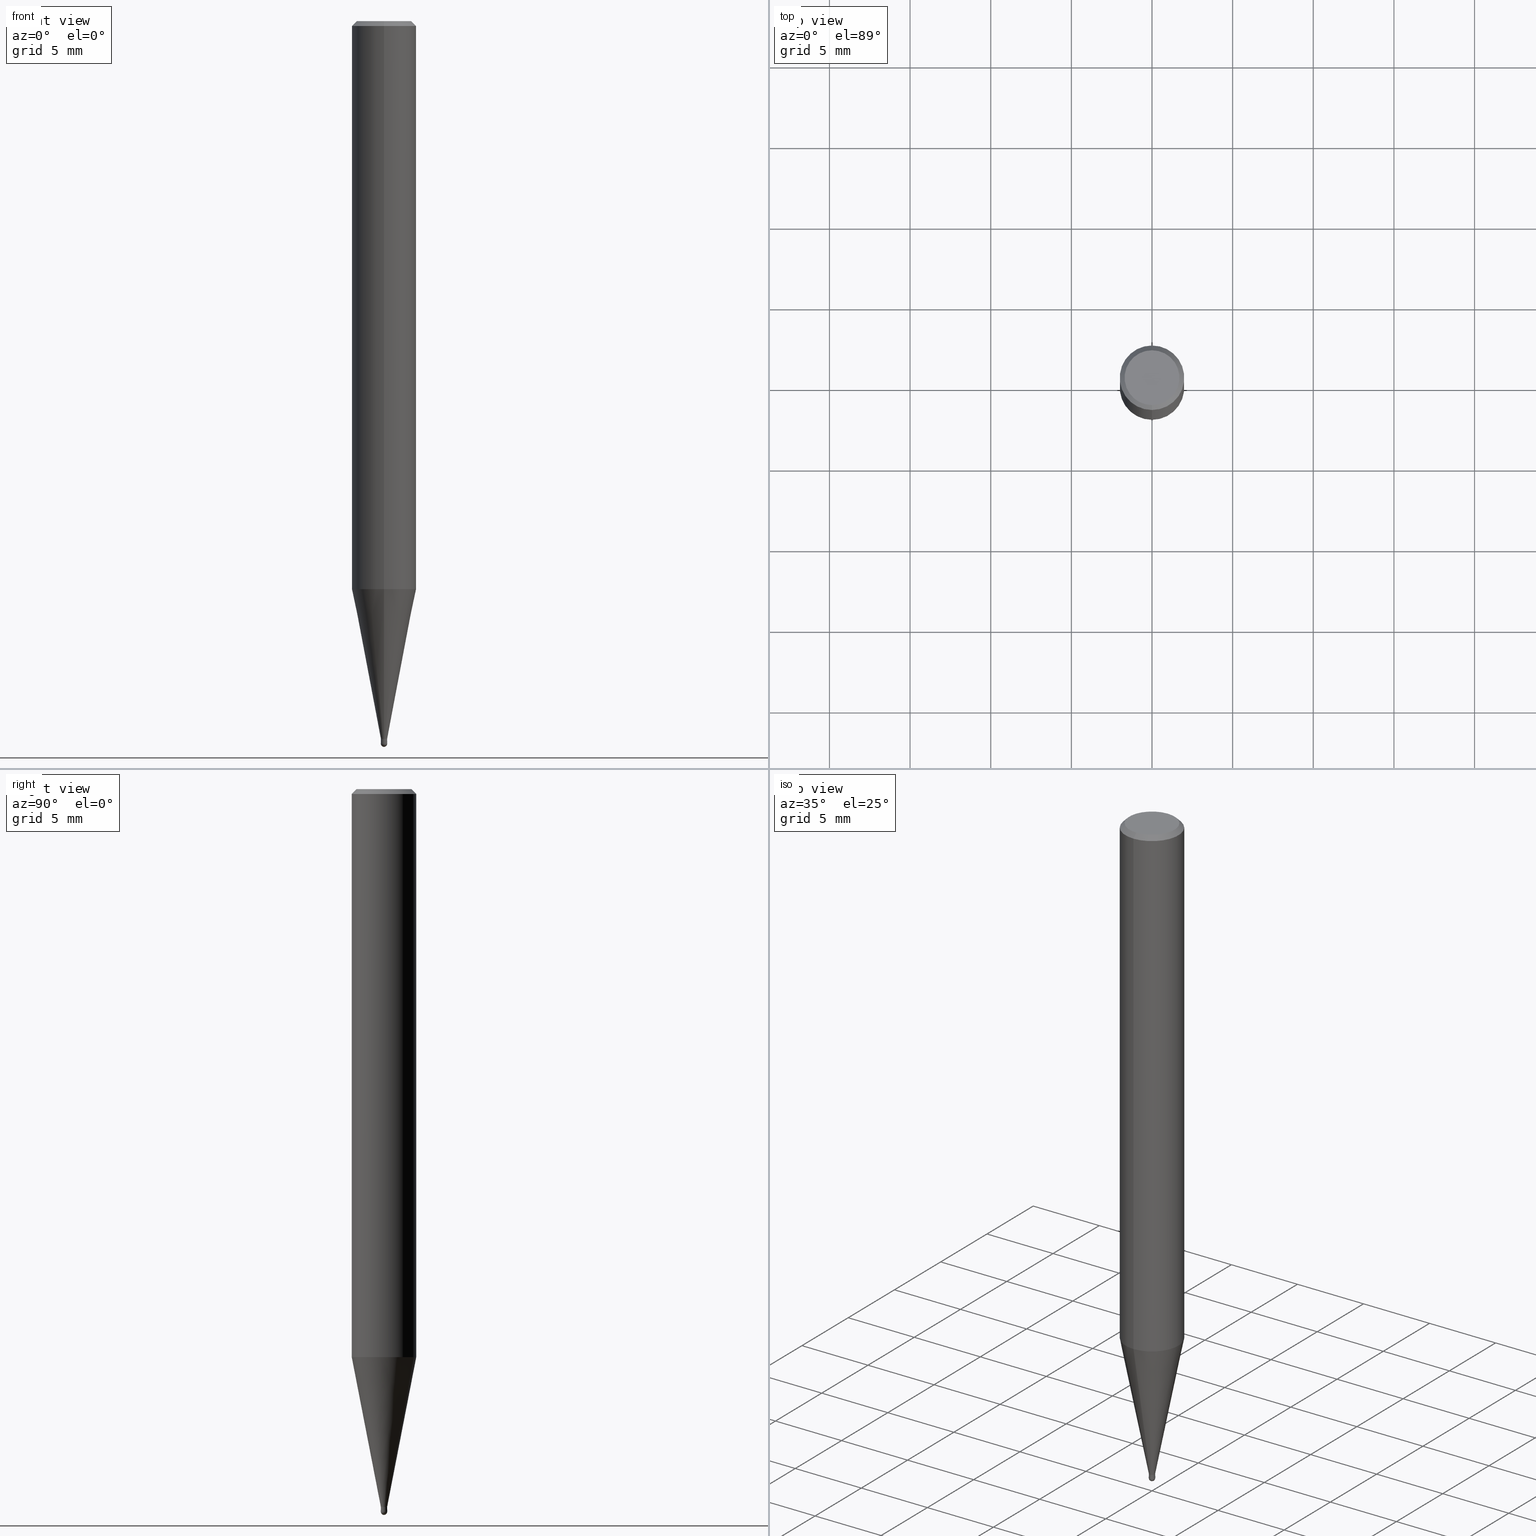
[diagram: canonical four-view strip — front | top / right | iso, engineering-drawing reading convention]
A machine part, canonical four-view strip (front | top / right | iso — engineering-drawing reading convention). The complete STEP part file that produces these views, byte-faithful:
ISO-10303-21;
HEADER;
FILE_DESCRIPTION(('no description'),'unknown implementation level');
FILE_NAME('CSELB2004-005-Huellk.stp','  ',('CIMSOURCE GmbH'),('CADClick - KiM GmbH - www.kimweb.de'),'unknown preprocess','ACIS','unknown authorization');
FILE_SCHEMA(('automotive_design'));
ENDSEC;
DATA;
#1=MECHANICAL_DESIGN_GEOMETRIC_PRESENTATION_REPRESENTATION(' ',(#14,#15,#16,#17,#18,#19,#20,#21,#22,#23,#24,#25,#26,#27,#28,#29,#30,#31,#32,#33,#34,#35,#36,#37,#38,#39,#40,#41,#42,#43,#44,#45,#46,#47,#48,#49,#50,#51,#52,#53,#54,#55,#56,#57,#58,#59,#60,#61,#62,#63,#64,#65,#66,#67,#68,#69,#70,#71,#72,#73,#74),#10);
#2=PRODUCT_DEFINITION_CONTEXT('',#75,'design');
#3=APPLICATION_PROTOCOL_DEFINITION('INTERNATIONAL STANDARD','automotive_design',1994,#75);
#4=PRODUCT_CATEGORY_RELATIONSHIP('NONE','NONE',#76,#77);
#5=SHAPE_DEFINITION_REPRESENTATION(#78,#79);
#6=PRODUCT_DEFINITION_CONTEXT('',#80,'design');
#7=APPLICATION_PROTOCOL_DEFINITION('INTERNATIONAL STANDARD','automotive_design',1994,#80);
#8=PRODUCT_CATEGORY_RELATIONSHIP('NONE','NONE',#81,#82);
#9=SHAPE_DEFINITION_REPRESENTATION(#83,#84);
#10= (GEOMETRIC_REPRESENTATION_CONTEXT(3)GLOBAL_UNCERTAINTY_ASSIGNED_CONTEXT((#87))GLOBAL_UNIT_ASSIGNED_CONTEXT((#89,#90,#91))REPRESENTATION_CONTEXT('NONE','WORKSPACE'));
#14=STYLED_ITEM('',(#93),#94);
#15=STYLED_ITEM('',(#95),#96);
#16=STYLED_ITEM('',(#97),#98);
#17=STYLED_ITEM('',(#99),#100);
#18=STYLED_ITEM('',(#101),#102);
#19=STYLED_ITEM('',(#103),#104);
#20=STYLED_ITEM('',(#105),#106);
#21=STYLED_ITEM('',(#107),#108);
#22=STYLED_ITEM('',(#109),#110);
#23=STYLED_ITEM('',(#111),#112);
#24=STYLED_ITEM('',(#113),#114);
#25=STYLED_ITEM('',(#115),#116);
#26=STYLED_ITEM('',(#117),#118);
#27=STYLED_ITEM('',(#119),#120);
#28=STYLED_ITEM('',(#121),#122);
#29=STYLED_ITEM('',(#123),#124);
#30=STYLED_ITEM('',(#125),#126);
#31=STYLED_ITEM('',(#127),#128);
#32=STYLED_ITEM('',(#129),#130);
#33=STYLED_ITEM('',(#131),#132);
#34=STYLED_ITEM('',(#133),#134);
#35=STYLED_ITEM('',(#135),#136);
#36=STYLED_ITEM('',(#137),#138);
#37=STYLED_ITEM('',(#139),#140);
#38=STYLED_ITEM('',(#141),#142);
#39=STYLED_ITEM('',(#143),#144);
#40=STYLED_ITEM('',(#145),#146);
#41=STYLED_ITEM('',(#147),#148);
#42=STYLED_ITEM('',(#149),#150);
#43=STYLED_ITEM('',(#151),#152);
#44=STYLED_ITEM('',(#153),#154);
#45=STYLED_ITEM('',(#155),#156);
#46=STYLED_ITEM('',(#157),#158);
#47=STYLED_ITEM('',(#159),#160);
#48=STYLED_ITEM('',(#161),#162);
#49=STYLED_ITEM('',(#163),#164);
#50=STYLED_ITEM('',(#165),#166);
#51=STYLED_ITEM('',(#167),#168);
#52=STYLED_ITEM('',(#169),#170);
#53=STYLED_ITEM('',(#171),#172);
#54=STYLED_ITEM('',(#173),#174);
#55=STYLED_ITEM('',(#175),#176);
#56=STYLED_ITEM('',(#177),#178);
#57=STYLED_ITEM('',(#179),#180);
#58=STYLED_ITEM('',(#181),#182);
#59=STYLED_ITEM('',(#183),#184);
#60=STYLED_ITEM('',(#185),#186);
#61=STYLED_ITEM('',(#187),#188);
#62=STYLED_ITEM('',(#189),#190);
#63=STYLED_ITEM('',(#191),#192);
#64=STYLED_ITEM('',(#193),#194);
#65=STYLED_ITEM('',(#195),#196);
#66=STYLED_ITEM('',(#197),#198);
#67=STYLED_ITEM('',(#199),#200);
#68=STYLED_ITEM('',(#201),#202);
#69=STYLED_ITEM('',(#203),#204);
#70=STYLED_ITEM('',(#205),#206);
#71=STYLED_ITEM('',(#207),#208);
#72=STYLED_ITEM('',(#209),#210);
#73=STYLED_ITEM('',(#211),#212);
#74=STYLED_ITEM('',(#213),#214);
#75=APPLICATION_CONTEXT(' ');
#76=PRODUCT_CATEGORY('part','NONE');
#77=PRODUCT_RELATED_PRODUCT_CATEGORY('detail',' ',(#215));
#78=PRODUCT_DEFINITION_SHAPE('NONE','NONE',#216);
#79=ADVANCED_BREP_SHAPE_REPRESENTATION('1',(#158,#217),#10);
#80=APPLICATION_CONTEXT(' ');
#81=PRODUCT_CATEGORY('part','NONE');
#82=PRODUCT_RELATED_PRODUCT_CATEGORY('detail',' ',(#218));
#83=PRODUCT_DEFINITION_SHAPE('NONE','NONE',#219);
#84=ADVANCED_BREP_SHAPE_REPRESENTATION('2',(#138,#220),#10);
#87=UNCERTAINTY_MEASURE_WITH_UNIT(LENGTH_MEASURE(1.0E-006),#89,'','');
#89= (CONVERSION_BASED_UNIT('MILLIMETRE',#223)LENGTH_UNIT()NAMED_UNIT(#226));
#90= (NAMED_UNIT(#228)PLANE_ANGLE_UNIT()SI_UNIT($,.RADIAN.));
#91= (NAMED_UNIT(#228)SOLID_ANGLE_UNIT()SI_UNIT($,.STERADIAN.));
#93=PRESENTATION_STYLE_ASSIGNMENT((#234));
#94=EDGE_CURVE('',#172,#142,#235,.T.);
#95=PRESENTATION_STYLE_ASSIGNMENT((#236));
#96=EDGE_CURVE('',#156,#166,#237,.T.);
#97=PRESENTATION_STYLE_ASSIGNMENT((#238));
#98=EDGE_CURVE('',#122,#134,#239,.T.);
#99=PRESENTATION_STYLE_ASSIGNMENT((#240));
#100=ADVANCED_FACE('',(#241),#242,.T.);
#101=PRESENTATION_STYLE_ASSIGNMENT((#243));
#102=ADVANCED_FACE('',(#244),#245,.T.);
#103=PRESENTATION_STYLE_ASSIGNMENT((#246));
#104=ADVANCED_FACE('',(#247),#248,.T.);
#105=PRESENTATION_STYLE_ASSIGNMENT((#249));
#106=ADVANCED_FACE('',(#250),#251,.T.);
#107=PRESENTATION_STYLE_ASSIGNMENT((#252));
#108=VERTEX_POINT('',#253);
#109=PRESENTATION_STYLE_ASSIGNMENT((#254));
#110=EDGE_CURVE('',#148,#120,#255,.T.);
#111=PRESENTATION_STYLE_ASSIGNMENT((#256));
#112=EDGE_CURVE('',#114,#166,#257,.T.);
#113=PRESENTATION_STYLE_ASSIGNMENT((#258));
#114=VERTEX_POINT('',#259);
#115=PRESENTATION_STYLE_ASSIGNMENT((#260));
#116=ADVANCED_FACE('',(#261),#262,.T.);
#117=PRESENTATION_STYLE_ASSIGNMENT((#263));
#118=ADVANCED_FACE('',(#264),#265,.T.);
#119=PRESENTATION_STYLE_ASSIGNMENT((#266));
#120=VERTEX_POINT('',#267);
#121=PRESENTATION_STYLE_ASSIGNMENT((#268));
#122=VERTEX_POINT('',#269);
#123=PRESENTATION_STYLE_ASSIGNMENT((#270));
#124=ADVANCED_FACE('',(#271),#272,.T.);
#125=PRESENTATION_STYLE_ASSIGNMENT((#273));
#126=EDGE_CURVE('',#200,#114,#274,.T.);
#127=PRESENTATION_STYLE_ASSIGNMENT((#275));
#128=EDGE_CURVE('',#120,#148,#276,.T.);
#129=PRESENTATION_STYLE_ASSIGNMENT((#277));
#130=EDGE_CURVE('',#140,#108,#278,.T.);
#131=PRESENTATION_STYLE_ASSIGNMENT((#279));
#132=ADVANCED_FACE('',(#280),#281,.T.);
#133=PRESENTATION_STYLE_ASSIGNMENT((#282));
#134=VERTEX_POINT('',#283);
#135=PRESENTATION_STYLE_ASSIGNMENT((#284));
#136=EDGE_CURVE('',#114,#122,#285,.T.);
#137=PRESENTATION_STYLE_ASSIGNMENT((#286));
#138=MANIFOLD_SOLID_BREP('2',#287);
#139=PRESENTATION_STYLE_ASSIGNMENT((#288));
#140=VERTEX_POINT('',#289);
#141=PRESENTATION_STYLE_ASSIGNMENT((#290));
#142=VERTEX_POINT('',#291);
#143=PRESENTATION_STYLE_ASSIGNMENT((#292));
#144=ADVANCED_FACE('',(#293),#294,.T.);
#145=PRESENTATION_STYLE_ASSIGNMENT((#295));
#146=EDGE_CURVE('',#142,#196,#296,.T.);
#147=PRESENTATION_STYLE_ASSIGNMENT((#297));
#148=VERTEX_POINT('',#298);
#149=PRESENTATION_STYLE_ASSIGNMENT((#299));
#150=EDGE_CURVE('',#172,#190,#300,.T.);
#151=PRESENTATION_STYLE_ASSIGNMENT((#301));
#152=EDGE_CURVE('',#196,#190,#302,.T.);
#153=PRESENTATION_STYLE_ASSIGNMENT((#303));
#154=ADVANCED_FACE('',(#304),#305,.T.);
#155=PRESENTATION_STYLE_ASSIGNMENT((#306));
#156=VERTEX_POINT('',#307);
#157=PRESENTATION_STYLE_ASSIGNMENT((#308));
#158=MANIFOLD_SOLID_BREP('1',#309);
#159=PRESENTATION_STYLE_ASSIGNMENT((#310));
#160=ADVANCED_FACE('',(#311),#312,.T.);
#161=PRESENTATION_STYLE_ASSIGNMENT((#313));
#162=EDGE_CURVE('',#108,#140,#314,.T.);
#163=PRESENTATION_STYLE_ASSIGNMENT((#315));
#164=ADVANCED_FACE('',(#316,#317),#318,.T.);
#165=PRESENTATION_STYLE_ASSIGNMENT((#319));
#166=VERTEX_POINT('',#320);
#167=PRESENTATION_STYLE_ASSIGNMENT((#321));
#168=EDGE_CURVE('',#134,#200,#322,.T.);
#169=PRESENTATION_STYLE_ASSIGNMENT((#323));
#170=EDGE_CURVE('',#208,#140,#324,.T.);
#171=PRESENTATION_STYLE_ASSIGNMENT((#325));
#172=VERTEX_POINT('',#326);
#173=PRESENTATION_STYLE_ASSIGNMENT((#327));
#174=EDGE_CURVE('',#186,#208,#328,.T.);
#175=PRESENTATION_STYLE_ASSIGNMENT((#329));
#176=EDGE_CURVE('',#166,#156,#330,.T.);
#177=PRESENTATION_STYLE_ASSIGNMENT((#331));
#178=EDGE_CURVE('',#190,#172,#332,.T.);
#179=PRESENTATION_STYLE_ASSIGNMENT((#333));
#180=EDGE_CURVE('',#148,#208,#334,.T.);
#181=PRESENTATION_STYLE_ASSIGNMENT((#335));
#182=EDGE_CURVE('',#122,#114,#336,.T.);
#183=PRESENTATION_STYLE_ASSIGNMENT((#337));
#184=EDGE_CURVE('',#172,#190,#338,.T.);
#185=PRESENTATION_STYLE_ASSIGNMENT((#339));
#186=VERTEX_POINT('',#340);
#187=PRESENTATION_STYLE_ASSIGNMENT((#341));
#188=EDGE_CURVE('',#196,#142,#342,.T.);
#189=PRESENTATION_STYLE_ASSIGNMENT((#343));
#190=VERTEX_POINT('',#344);
#191=PRESENTATION_STYLE_ASSIGNMENT((#345));
#192=EDGE_CURVE('',#108,#186,#346,.T.);
#193=PRESENTATION_STYLE_ASSIGNMENT((#347));
#194=EDGE_CURVE('',#200,#134,#348,.T.);
#195=PRESENTATION_STYLE_ASSIGNMENT((#349));
#196=VERTEX_POINT('',#350);
#197=PRESENTATION_STYLE_ASSIGNMENT((#351));
#198=EDGE_CURVE('',#186,#120,#352,.T.);
#199=PRESENTATION_STYLE_ASSIGNMENT((#353));
#200=VERTEX_POINT('',#354);
#201=PRESENTATION_STYLE_ASSIGNMENT((#355));
#202=EDGE_CURVE('',#156,#122,#356,.T.);
#203=PRESENTATION_STYLE_ASSIGNMENT((#357));
#204=ADVANCED_FACE('',(#358),#359,.T.);
#205=PRESENTATION_STYLE_ASSIGNMENT((#360));
#206=ADVANCED_FACE('',(#361),#362,.T.);
#207=PRESENTATION_STYLE_ASSIGNMENT((#363));
#208=VERTEX_POINT('',#364);
#209=PRESENTATION_STYLE_ASSIGNMENT((#365));
#210=ADVANCED_FACE('',(#366),#367,.T.);
#211=PRESENTATION_STYLE_ASSIGNMENT((#368));
#212=ADVANCED_FACE('',(#369),#370,.T.);
#213=PRESENTATION_STYLE_ASSIGNMENT((#371));
#214=EDGE_CURVE('',#208,#186,#372,.T.);
#215=PRODUCT('1','1','PART-1-DESC',(#373));
#216=PRODUCT_DEFINITION('NONE','NONE',#374,#2);
#217=AXIS2_PLACEMENT_3D('',#375,#376,#377);
#218=PRODUCT('2','2','PART-2-DESC',(#378));
#219=PRODUCT_DEFINITION('NONE','NONE',#379,#6);
#220=AXIS2_PLACEMENT_3D('',#380,#381,#382);
#223=LENGTH_MEASURE_WITH_UNIT(LENGTH_MEASURE(1.0),#383);
#226=DIMENSIONAL_EXPONENTS(1.0,0.0,0.0,0.0,0.0,0.0,0.0);
#228=DIMENSIONAL_EXPONENTS(0.0,0.0,0.0,0.0,0.0,0.0,0.0);
#234=CURVE_STYLE('',#384,POSITIVE_LENGTH_MEASURE(1.0E-006),#385);
#235=LINE('',#386,#387);
#236=CURVE_STYLE('',#388,POSITIVE_LENGTH_MEASURE(1.0E-006),#389);
#237=CIRCLE('',#390,2.0);
#238=CURVE_STYLE('',#391,POSITIVE_LENGTH_MEASURE(1.0E-006),#392);
#239=LINE('',#393,#394);
#240=SURFACE_STYLE_USAGE(.BOTH.,#395);
#241=FACE_OUTER_BOUND('',#396,.T.);
#242=CONICAL_SURFACE('',#397,1.09745,0.191984604054908);
#243=SURFACE_STYLE_USAGE(.BOTH.,#398);
#244=FACE_OUTER_BOUND('',#399,.T.);
#245=CYLINDRICAL_SURFACE('',#400,0.19495);
#246=SURFACE_STYLE_USAGE(.BOTH.,#401);
#247=FACE_OUTER_BOUND('',#402,.T.);
#248=CONICAL_SURFACE('',#403,1.09745,0.191984604054908);
#249=SURFACE_STYLE_USAGE(.BOTH.,#404);
#250=FACE_OUTER_BOUND('',#405,.T.);
#251=PLANE('',#406);
#252=POINT_STYLE(' ',#407,POSITIVE_LENGTH_MEASURE(1.0E-006),#408);
#253=CARTESIAN_POINT('',(2.38737008677672E-017,-0.19495,-44.68));
#254=CURVE_STYLE('',#409,POSITIVE_LENGTH_MEASURE(1.0E-006),#410);
#255=CIRCLE('',#411,1.99995);
#256=CURVE_STYLE('',#412,POSITIVE_LENGTH_MEASURE(1.0E-006),#413);
#257=LINE('',#414,#415);
#258=POINT_STYLE(' ',#416,POSITIVE_LENGTH_MEASURE(1.0E-006),#417);
#259=CARTESIAN_POINT('',(0.0,2.0,-0.299999999999997));
#260=SURFACE_STYLE_USAGE(.BOTH.,#418);
#261=FACE_OUTER_BOUND('',#419,.T.);
#262=CONICAL_SURFACE('',#420,1.85,0.785398163397453);
#263=SURFACE_STYLE_USAGE(.BOTH.,#421);
#264=FACE_OUTER_BOUND('',#422,.T.);
#265=CYLINDRICAL_SURFACE('',#423,2.0);
#266=POINT_STYLE(' ',#424,POSITIVE_LENGTH_MEASURE(1.0E-006),#425);
#267=CARTESIAN_POINT('',(2.44915147732706E-016,-1.99995,-35.214));
#268=POINT_STYLE(' ',#426,POSITIVE_LENGTH_MEASURE(1.0E-006),#427);
#269=CARTESIAN_POINT('',(2.44921270764475E-016,-2.0,-0.299999999999997));
#270=SURFACE_STYLE_USAGE(.BOTH.,#428);
#271=FACE_OUTER_BOUND('',#429,.T.);
#272=CONICAL_SURFACE('',#430,0.19995,0.000833333140432319);
#273=CURVE_STYLE('',#431,POSITIVE_LENGTH_MEASURE(1.0E-006),#432);
#274=LINE('',#433,#434);
#275=CURVE_STYLE('',#435,POSITIVE_LENGTH_MEASURE(1.0E-006),#436);
#276=CIRCLE('',#437,1.99995);
#277=CURVE_STYLE('',#438,POSITIVE_LENGTH_MEASURE(1.0E-006),#439);
#278=CIRCLE('',#440,0.19495);
#279=SURFACE_STYLE_USAGE(.BOTH.,#441);
#280=FACE_OUTER_BOUND('',#442,.T.);
#281=CONICAL_SURFACE('',#443,0.19995,0.000833333140432319);
#282=POINT_STYLE(' ',#444,POSITIVE_LENGTH_MEASURE(1.0E-006),#445);
#283=CARTESIAN_POINT('',(2.08183080149804E-016,-1.7,0.0));
#284=CURVE_STYLE('',#446,POSITIVE_LENGTH_MEASURE(1.0E-006),#447);
#285=CIRCLE('',#448,2.0);
#286=SURFACE_STYLE_USAGE(.BOTH.,#449);
#287=CLOSED_SHELL('',(#144,#124,#212,#132,#210));
#288=POINT_STYLE(' ',#450,POSITIVE_LENGTH_MEASURE(1.0E-006),#451);
#289=CARTESIAN_POINT('',(0.0,0.19495,-44.68));
#290=POINT_STYLE(' ',#452,POSITIVE_LENGTH_MEASURE(1.0E-006),#453);
#291=CARTESIAN_POINT('',(2.44798810129093E-017,-0.1999,-44.68));
#292=SURFACE_STYLE_USAGE(.BOTH.,#454);
#293=FACE_OUTER_BOUND('',#455,.T.);
#294=SPHERICAL_SURFACE('',#456,0.2);
#295=CURVE_STYLE('',#457,POSITIVE_LENGTH_MEASURE(1.0E-006),#458);
#296=CIRCLE('',#459,0.1999);
#297=POINT_STYLE(' ',#460,POSITIVE_LENGTH_MEASURE(1.0E-006),#461);
#298=CARTESIAN_POINT('',(0.0,1.99995,-35.214));
#299=CURVE_STYLE('',#462,POSITIVE_LENGTH_MEASURE(1.0E-006),#463);
#300=CIRCLE('',#464,0.2);
#301=CURVE_STYLE('',#465,POSITIVE_LENGTH_MEASURE(1.0E-006),#466);
#302=LINE('',#467,#468);
#303=SURFACE_STYLE_USAGE(.BOTH.,#469);
#304=FACE_OUTER_BOUND('',#470,.T.);
#305=CYLINDRICAL_SURFACE('',#471,0.19495);
#306=POINT_STYLE(' ',#472,POSITIVE_LENGTH_MEASURE(1.0E-006),#473);
#307=CARTESIAN_POINT('',(2.44921270764475E-016,-2.0,-35.214));
#308=SURFACE_STYLE_USAGE(.BOTH.,#474);
#309=CLOSED_SHELL('',(#154,#104,#118,#160,#164,#204,#116,#206,#100,#102,#106));
#310=SURFACE_STYLE_USAGE(.BOTH.,#475);
#311=FACE_OUTER_BOUND('',#476,.T.);
#312=CONICAL_SURFACE('',#477,1.85,0.785398163397453);
#313=CURVE_STYLE('',#478,POSITIVE_LENGTH_MEASURE(1.0E-006),#479);
#314=CIRCLE('',#480,0.19495);
#315=SURFACE_STYLE_USAGE(.BOTH.,#481);
#316=FACE_OUTER_BOUND('',#482,.T.);
#317=FACE_BOUND('',#483,.T.);
#318=PLANE('',#484);
#319=POINT_STYLE(' ',#485,POSITIVE_LENGTH_MEASURE(1.0E-006),#486);
#320=CARTESIAN_POINT('',(0.0,2.0,-35.214));
#321=CURVE_STYLE('',#487,POSITIVE_LENGTH_MEASURE(1.0E-006),#488);
#322=CIRCLE('',#489,1.7);
#323=CURVE_STYLE('',#490,POSITIVE_LENGTH_MEASURE(1.0E-006),#491);
#324=LINE('',#492,#493);
#325=POINT_STYLE(' ',#494,POSITIVE_LENGTH_MEASURE(1.0E-006),#495);
#326=CARTESIAN_POINT('',(2.44921270764475E-017,-0.2,-44.8));
#327=CURVE_STYLE('',#496,POSITIVE_LENGTH_MEASURE(1.0E-006),#497);
#328=CIRCLE('',#498,0.19495);
#329=CURVE_STYLE('',#499,POSITIVE_LENGTH_MEASURE(1.0E-006),#500);
#330=CIRCLE('',#501,2.0);
#331=CURVE_STYLE('',#502,POSITIVE_LENGTH_MEASURE(1.0E-006),#503);
#332=CIRCLE('',#504,0.2);
#333=CURVE_STYLE('',#505,POSITIVE_LENGTH_MEASURE(1.0E-006),#506);
#334=LINE('',#507,#508);
#335=CURVE_STYLE('',#509,POSITIVE_LENGTH_MEASURE(1.0E-006),#510);
#336=CIRCLE('',#511,2.0);
#337=CURVE_STYLE('',#512,POSITIVE_LENGTH_MEASURE(1.0E-006),#513);
#338=CIRCLE('',#514,0.2);
#339=POINT_STYLE(' ',#515,POSITIVE_LENGTH_MEASURE(1.0E-006),#516);
#340=CARTESIAN_POINT('',(2.38737008677672E-017,-0.19495,-44.5));
#341=CURVE_STYLE('',#517,POSITIVE_LENGTH_MEASURE(1.0E-006),#518);
#342=CIRCLE('',#519,0.1999);
#343=POINT_STYLE(' ',#520,POSITIVE_LENGTH_MEASURE(1.0E-006),#521);
#344=CARTESIAN_POINT('',(0.0,0.2,-44.8));
#345=CURVE_STYLE('',#522,POSITIVE_LENGTH_MEASURE(1.0E-006),#523);
#346=LINE('',#524,#525);
#347=CURVE_STYLE('',#526,POSITIVE_LENGTH_MEASURE(1.0E-006),#527);
#348=CIRCLE('',#528,1.7);
#349=POINT_STYLE(' ',#529,POSITIVE_LENGTH_MEASURE(1.0E-006),#530);
#350=CARTESIAN_POINT('',(0.0,0.1999,-44.68));
#351=CURVE_STYLE('',#531,POSITIVE_LENGTH_MEASURE(1.0E-006),#532);
#352=LINE('',#533,#534);
#353=POINT_STYLE(' ',#535,POSITIVE_LENGTH_MEASURE(1.0E-006),#536);
#354=CARTESIAN_POINT('',(0.0,1.7,0.0));
#355=CURVE_STYLE('',#537,POSITIVE_LENGTH_MEASURE(1.0E-006),#538);
#356=LINE('',#539,#540);
#357=SURFACE_STYLE_USAGE(.BOTH.,#541);
#358=FACE_OUTER_BOUND('',#542,.T.);
#359=PLANE('',#543);
#360=SURFACE_STYLE_USAGE(.BOTH.,#544);
#361=FACE_OUTER_BOUND('',#545,.T.);
#362=CYLINDRICAL_SURFACE('',#546,2.0);
#363=POINT_STYLE(' ',#547,POSITIVE_LENGTH_MEASURE(1.0E-006),#548);
#364=CARTESIAN_POINT('',(0.0,0.19495,-44.5));
#365=SURFACE_STYLE_USAGE(.BOTH.,#549);
#366=FACE_OUTER_BOUND('',#550,.T.);
#367=SPHERICAL_SURFACE('',#551,0.2);
#368=SURFACE_STYLE_USAGE(.BOTH.,#552);
#369=FACE_OUTER_BOUND('',#553,.T.);
#370=PLANE('',#554);
#371=CURVE_STYLE('',#555,POSITIVE_LENGTH_MEASURE(1.0E-006),#556);
#372=CIRCLE('',#557,0.19495);
#373=PRODUCT_CONTEXT('',#75,'mechanical');
#374=PRODUCT_DEFINITION_FORMATION_WITH_SPECIFIED_SOURCE(' ','NONE',#215,.NOT_KNOWN.);
#375=CARTESIAN_POINT('',(0.0,0.0,0.0));
#376=DIRECTION('',(0.0,0.0,1.0));
#377=DIRECTION('',(1.0,0.0,0.0));
#378=PRODUCT_CONTEXT('',#80,'mechanical');
#379=PRODUCT_DEFINITION_FORMATION_WITH_SPECIFIED_SOURCE(' ','NONE',#218,.NOT_KNOWN.);
#380=CARTESIAN_POINT('',(0.0,0.0,0.0));
#381=DIRECTION('',(0.0,0.0,1.0));
#382=DIRECTION('',(1.0,0.0,0.0));
#383= (NAMED_UNIT(#226)LENGTH_UNIT()SI_UNIT(.MILLI.,.METRE.));
#384=DRAUGHTING_PRE_DEFINED_CURVE_FONT('continuous');
#385=COLOUR_RGB('',0.800000011920929,0.800000011920929,0.800000011920929);
#386=CARTESIAN_POINT('',(2.44860040446784E-017,-0.19995,-44.74));
#387=VECTOR('',#559,1.0);
#388=DRAUGHTING_PRE_DEFINED_CURVE_FONT('continuous');
#389=COLOUR_RGB('',0.498039215803146,0.498039215803146,0.498039215803146);
#390=AXIS2_PLACEMENT_3D('',#560,#561,#562);
#391=DRAUGHTING_PRE_DEFINED_CURVE_FONT('continuous');
#392=COLOUR_RGB('',0.498039215803146,0.498039215803146,0.498039215803146);
#393=CARTESIAN_POINT('',(2.2655217545714E-016,-1.85,-0.149999999999999));
#394=VECTOR('',#563,1.0);
#395=SURFACE_SIDE_STYLE('',(#564));
#396=EDGE_LOOP('',(#565,#566,#567,#568));
#397=AXIS2_PLACEMENT_3D('',#569,#570,#571);
#398=SURFACE_SIDE_STYLE('',(#572));
#399=EDGE_LOOP('',(#573,#574,#575,#576));
#400=AXIS2_PLACEMENT_3D('',#577,#578,#579);
#401=SURFACE_SIDE_STYLE('',(#580));
#402=EDGE_LOOP('',(#581,#582,#583,#584));
#403=AXIS2_PLACEMENT_3D('',#585,#586,#587);
#404=SURFACE_SIDE_STYLE('',(#588));
#405=EDGE_LOOP('',(#589,#590));
#406=AXIS2_PLACEMENT_3D('',#591,#592,#593);
#407=PRE_DEFINED_MARKER('');
#408=COLOUR_RGB('',0.498039215803146,0.498039215803146,0.498039215803146);
#409=DRAUGHTING_PRE_DEFINED_CURVE_FONT('continuous');
#410=COLOUR_RGB('',0.498039215803146,0.498039215803146,0.498039215803146);
#411=AXIS2_PLACEMENT_3D('',#594,#595,#596);
#412=DRAUGHTING_PRE_DEFINED_CURVE_FONT('continuous');
#413=COLOUR_RGB('',0.498039215803146,0.498039215803146,0.498039215803146);
#414=CARTESIAN_POINT('',(-2.44921270764475E-016,2.0,-17.757));
#415=VECTOR('',#597,1.0);
#416=PRE_DEFINED_MARKER('');
#417=COLOUR_RGB('',0.498039215803146,0.498039215803146,0.498039215803146);
#418=SURFACE_SIDE_STYLE('',(#598));
#419=EDGE_LOOP('',(#599,#600,#601,#602));
#420=AXIS2_PLACEMENT_3D('',#603,#604,#605);
#421=SURFACE_SIDE_STYLE('',(#606));
#422=EDGE_LOOP('',(#607,#608,#609,#610));
#423=AXIS2_PLACEMENT_3D('',#611,#612,#613);
#424=PRE_DEFINED_MARKER('');
#425=COLOUR_RGB('',0.498039215803146,0.498039215803146,0.498039215803146);
#426=PRE_DEFINED_MARKER('');
#427=COLOUR_RGB('',0.498039215803146,0.498039215803146,0.498039215803146);
#428=SURFACE_SIDE_STYLE('',(#614));
#429=EDGE_LOOP('',(#615,#616,#617,#618));
#430=AXIS2_PLACEMENT_3D('',#619,#620,#621);
#431=DRAUGHTING_PRE_DEFINED_CURVE_FONT('continuous');
#432=COLOUR_RGB('',0.498039215803146,0.498039215803146,0.498039215803146);
#433=CARTESIAN_POINT('',(-2.2655217545714E-016,1.85,-0.149999999999999));
#434=VECTOR('',#622,1.0);
#435=DRAUGHTING_PRE_DEFINED_CURVE_FONT('continuous');
#436=COLOUR_RGB('',0.498039215803146,0.498039215803146,0.498039215803146);
#437=AXIS2_PLACEMENT_3D('',#623,#624,#625);
#438=DRAUGHTING_PRE_DEFINED_CURVE_FONT('continuous');
#439=COLOUR_RGB('',0.498039215803146,0.498039215803146,0.498039215803146);
#440=AXIS2_PLACEMENT_3D('',#626,#627,#628);
#441=SURFACE_SIDE_STYLE('',(#629));
#442=EDGE_LOOP('',(#630,#631,#632,#633));
#443=AXIS2_PLACEMENT_3D('',#634,#635,#636);
#444=PRE_DEFINED_MARKER('');
#445=COLOUR_RGB('',0.498039215803146,0.498039215803146,0.498039215803146);
#446=DRAUGHTING_PRE_DEFINED_CURVE_FONT('continuous');
#447=COLOUR_RGB('',0.498039215803146,0.498039215803146,0.498039215803146);
#448=AXIS2_PLACEMENT_3D('',#637,#638,#639);
#449=SURFACE_SIDE_STYLE('',(#640));
#450=PRE_DEFINED_MARKER('');
#451=COLOUR_RGB('',0.498039215803146,0.498039215803146,0.498039215803146);
#452=PRE_DEFINED_MARKER('');
#453=COLOUR_RGB('',0.800000011920929,0.800000011920929,0.800000011920929);
#454=SURFACE_SIDE_STYLE('',(#641));
#455=EDGE_LOOP('',(#642,#643));
#456=AXIS2_PLACEMENT_3D('',#644,#645,#646);
#457=DRAUGHTING_PRE_DEFINED_CURVE_FONT('continuous');
#458=COLOUR_RGB('',0.800000011920929,0.800000011920929,0.800000011920929);
#459=AXIS2_PLACEMENT_3D('',#647,#648,#649);
#460=PRE_DEFINED_MARKER('');
#461=COLOUR_RGB('',0.498039215803146,0.498039215803146,0.498039215803146);
#462=DRAUGHTING_PRE_DEFINED_CURVE_FONT('continuous');
#463=COLOUR_RGB('',0.800000011920929,0.800000011920929,0.800000011920929);
#464=AXIS2_PLACEMENT_3D('',#650,#651,#652);
#465=DRAUGHTING_PRE_DEFINED_CURVE_FONT('continuous');
#466=COLOUR_RGB('',0.800000011920929,0.800000011920929,0.800000011920929);
#467=CARTESIAN_POINT('',(-2.44860040446784E-017,0.19995,-44.74));
#468=VECTOR('',#653,1.0);
#469=SURFACE_SIDE_STYLE('',(#654));
#470=EDGE_LOOP('',(#655,#656,#657,#658));
#471=AXIS2_PLACEMENT_3D('',#659,#660,#661);
#472=PRE_DEFINED_MARKER('');
#473=COLOUR_RGB('',0.498039215803146,0.498039215803146,0.498039215803146);
#474=SURFACE_SIDE_STYLE('',(#662));
#475=SURFACE_SIDE_STYLE('',(#663));
#476=EDGE_LOOP('',(#664,#665,#666,#667));
#477=AXIS2_PLACEMENT_3D('',#668,#669,#670);
#478=DRAUGHTING_PRE_DEFINED_CURVE_FONT('continuous');
#479=COLOUR_RGB('',0.498039215803146,0.498039215803146,0.498039215803146);
#480=AXIS2_PLACEMENT_3D('',#671,#672,#673);
#481=SURFACE_SIDE_STYLE('',(#674));
#482=EDGE_LOOP('',(#675,#676));
#483=EDGE_LOOP('',(#677,#678));
#484=AXIS2_PLACEMENT_3D('',#679,#680,#681);
#485=PRE_DEFINED_MARKER('');
#486=COLOUR_RGB('',0.498039215803146,0.498039215803146,0.498039215803146);
#487=DRAUGHTING_PRE_DEFINED_CURVE_FONT('continuous');
#488=COLOUR_RGB('',0.498039215803146,0.498039215803146,0.498039215803146);
#489=AXIS2_PLACEMENT_3D('',#682,#683,#684);
#490=DRAUGHTING_PRE_DEFINED_CURVE_FONT('continuous');
#491=COLOUR_RGB('',0.498039215803146,0.498039215803146,0.498039215803146);
#492=CARTESIAN_POINT('',(-2.38737008677672E-017,0.19495,-44.59));
#493=VECTOR('',#685,1.0);
#494=PRE_DEFINED_MARKER('');
#495=COLOUR_RGB('',0.800000011920929,0.800000011920929,0.800000011920929);
#496=DRAUGHTING_PRE_DEFINED_CURVE_FONT('continuous');
#497=COLOUR_RGB('',0.498039215803146,0.498039215803146,0.498039215803146);
#498=AXIS2_PLACEMENT_3D('',#686,#687,#688);
#499=DRAUGHTING_PRE_DEFINED_CURVE_FONT('continuous');
#500=COLOUR_RGB('',0.498039215803146,0.498039215803146,0.498039215803146);
#501=AXIS2_PLACEMENT_3D('',#689,#690,#691);
#502=DRAUGHTING_PRE_DEFINED_CURVE_FONT('continuous');
#503=COLOUR_RGB('',0.800000011920929,0.800000011920929,0.800000011920929);
#504=AXIS2_PLACEMENT_3D('',#692,#693,#694);
#505=DRAUGHTING_PRE_DEFINED_CURVE_FONT('continuous');
#506=COLOUR_RGB('',0.498039215803146,0.498039215803146,0.498039215803146);
#507=CARTESIAN_POINT('',(-1.34394424300237E-016,1.09745,-39.857));
#508=VECTOR('',#695,1.0);
#509=DRAUGHTING_PRE_DEFINED_CURVE_FONT('continuous');
#510=COLOUR_RGB('',0.498039215803146,0.498039215803146,0.498039215803146);
#511=AXIS2_PLACEMENT_3D('',#696,#697,#698);
#512=DRAUGHTING_PRE_DEFINED_CURVE_FONT('continuous');
#513=COLOUR_RGB('',0.800000011920929,0.800000011920929,0.800000011920929);
#514=AXIS2_PLACEMENT_3D('',#699,#700,#701);
#515=PRE_DEFINED_MARKER('');
#516=COLOUR_RGB('',0.498039215803146,0.498039215803146,0.498039215803146);
#517=DRAUGHTING_PRE_DEFINED_CURVE_FONT('continuous');
#518=COLOUR_RGB('',0.800000011920929,0.800000011920929,0.800000011920929);
#519=AXIS2_PLACEMENT_3D('',#702,#703,#704);
#520=PRE_DEFINED_MARKER('');
#521=COLOUR_RGB('',0.800000011920929,0.800000011920929,0.800000011920929);
#522=DRAUGHTING_PRE_DEFINED_CURVE_FONT('continuous');
#523=COLOUR_RGB('',0.498039215803146,0.498039215803146,0.498039215803146);
#524=CARTESIAN_POINT('',(2.38737008677672E-017,-0.19495,-44.59));
#525=VECTOR('',#705,1.0);
#526=DRAUGHTING_PRE_DEFINED_CURVE_FONT('continuous');
#527=COLOUR_RGB('',0.498039215803146,0.498039215803146,0.498039215803146);
#528=AXIS2_PLACEMENT_3D('',#706,#707,#708);
#529=PRE_DEFINED_MARKER('');
#530=COLOUR_RGB('',0.800000011920929,0.800000011920929,0.800000011920929);
#531=DRAUGHTING_PRE_DEFINED_CURVE_FONT('continuous');
#532=COLOUR_RGB('',0.498039215803146,0.498039215803146,0.498039215803146);
#533=CARTESIAN_POINT('',(1.34394424300237E-016,-1.09745,-39.857));
#534=VECTOR('',#709,1.0);
#535=PRE_DEFINED_MARKER('');
#536=COLOUR_RGB('',0.498039215803146,0.498039215803146,0.498039215803146);
#537=DRAUGHTING_PRE_DEFINED_CURVE_FONT('continuous');
#538=COLOUR_RGB('',0.498039215803146,0.498039215803146,0.498039215803146);
#539=CARTESIAN_POINT('',(2.44921270764475E-016,-2.0,-17.757));
#540=VECTOR('',#710,1.0);
#541=SURFACE_SIDE_STYLE('',(#711));
#542=EDGE_LOOP('',(#712,#713));
#543=AXIS2_PLACEMENT_3D('',#714,#715,#716);
#544=SURFACE_SIDE_STYLE('',(#717));
#545=EDGE_LOOP('',(#718,#719,#720,#721));
#546=AXIS2_PLACEMENT_3D('',#722,#723,#724);
#547=PRE_DEFINED_MARKER('');
#548=COLOUR_RGB('',0.498039215803146,0.498039215803146,0.498039215803146);
#549=SURFACE_SIDE_STYLE('',(#725));
#550=EDGE_LOOP('',(#726,#727));
#551=AXIS2_PLACEMENT_3D('',#728,#729,#730);
#552=SURFACE_SIDE_STYLE('',(#731));
#553=EDGE_LOOP('',(#732,#733));
#554=AXIS2_PLACEMENT_3D('',#734,#735,#736);
#555=DRAUGHTING_PRE_DEFINED_CURVE_FONT('continuous');
#556=COLOUR_RGB('',0.498039215803146,0.498039215803146,0.498039215803146);
#557=AXIS2_PLACEMENT_3D('',#737,#738,#739);
#559=DIRECTION('',(-1.02050494051022E-019,0.000833333043981772,0.999999652777959));
#560=CARTESIAN_POINT('',(0.0,0.0,-35.214));
#561=DIRECTION('',(0.0,0.0,-1.0));
#562=DIRECTION('',(0.0,1.0,0.0));
#563=DIRECTION('',(-8.6592745707194E-017,0.707106781186551,0.707106781186544));
#564=SURFACE_STYLE_FILL_AREA(#740);
#565=ORIENTED_EDGE('',*,*,#180,.T.);
#566=ORIENTED_EDGE('',*,*,#174,.F.);
#567=ORIENTED_EDGE('',*,*,#198,.T.);
#568=ORIENTED_EDGE('',*,*,#128,.T.);
#569=CARTESIAN_POINT('',(0.0,0.0,-39.857));
#570=DIRECTION('',(-0.0,-0.0,1.0));
#571=DIRECTION('',(0.0,1.0,0.0));
#572=SURFACE_STYLE_FILL_AREA(#741);
#573=ORIENTED_EDGE('',*,*,#170,.T.);
#574=ORIENTED_EDGE('',*,*,#162,.F.);
#575=ORIENTED_EDGE('',*,*,#192,.T.);
#576=ORIENTED_EDGE('',*,*,#174,.T.);
#577=CARTESIAN_POINT('',(0.0,0.0,-44.59));
#578=DIRECTION('',(-0.0,-0.0,1.0));
#579=DIRECTION('',(0.0,1.0,0.0));
#580=SURFACE_STYLE_FILL_AREA(#742);
#581=ORIENTED_EDGE('',*,*,#180,.F.);
#582=ORIENTED_EDGE('',*,*,#110,.T.);
#583=ORIENTED_EDGE('',*,*,#198,.F.);
#584=ORIENTED_EDGE('',*,*,#214,.F.);
#585=CARTESIAN_POINT('',(0.0,0.0,-39.857));
#586=DIRECTION('',(-0.0,-0.0,1.0));
#587=DIRECTION('',(0.0,1.0,0.0));
#588=SURFACE_STYLE_FILL_AREA(#743);
#589=ORIENTED_EDGE('',*,*,#130,.T.);
#590=ORIENTED_EDGE('',*,*,#162,.T.);
#591=CARTESIAN_POINT('',(0.0,0.097475,-44.68));
#592=DIRECTION('',(0.0,0.0,-1.0));
#593=DIRECTION('',(0.0,1.0,0.0));
#594=CARTESIAN_POINT('',(0.0,0.0,-35.214));
#595=DIRECTION('',(0.0,0.0,-1.0));
#596=DIRECTION('',(0.0,1.0,0.0));
#597=DIRECTION('',(0.0,0.0,-1.0));
#598=SURFACE_STYLE_FILL_AREA(#744);
#599=ORIENTED_EDGE('',*,*,#126,.T.);
#600=ORIENTED_EDGE('',*,*,#182,.F.);
#601=ORIENTED_EDGE('',*,*,#98,.T.);
#602=ORIENTED_EDGE('',*,*,#168,.T.);
#603=CARTESIAN_POINT('',(0.0,0.0,-0.149999999999999));
#604=DIRECTION('',(0.0,-0.0,-1.0));
#605=DIRECTION('',(0.0,1.0,0.0));
#606=SURFACE_STYLE_FILL_AREA(#745);
#607=ORIENTED_EDGE('',*,*,#112,.F.);
#608=ORIENTED_EDGE('',*,*,#136,.T.);
#609=ORIENTED_EDGE('',*,*,#202,.F.);
#610=ORIENTED_EDGE('',*,*,#176,.F.);
#611=CARTESIAN_POINT('',(0.0,0.0,-17.757));
#612=DIRECTION('',(-0.0,-0.0,1.0));
#613=DIRECTION('',(0.0,1.0,0.0));
#614=SURFACE_STYLE_FILL_AREA(#746);
#615=ORIENTED_EDGE('',*,*,#152,.F.);
#616=ORIENTED_EDGE('',*,*,#188,.T.);
#617=ORIENTED_EDGE('',*,*,#94,.F.);
#618=ORIENTED_EDGE('',*,*,#178,.F.);
#619=CARTESIAN_POINT('',(0.0,0.0,-44.74));
#620=DIRECTION('',(0.0,-0.0,-1.0));
#621=DIRECTION('',(0.0,1.0,0.0));
#622=DIRECTION('',(-8.6592745707194E-017,0.707106781186551,-0.707106781186544));
#623=CARTESIAN_POINT('',(0.0,0.0,-35.214));
#624=DIRECTION('',(0.0,0.0,-1.0));
#625=DIRECTION('',(0.0,1.0,0.0));
#626=CARTESIAN_POINT('',(0.0,0.0,-44.68));
#627=DIRECTION('',(0.0,0.0,-1.0));
#628=DIRECTION('',(0.0,1.0,0.0));
#629=SURFACE_STYLE_FILL_AREA(#747);
#630=ORIENTED_EDGE('',*,*,#152,.T.);
#631=ORIENTED_EDGE('',*,*,#150,.F.);
#632=ORIENTED_EDGE('',*,*,#94,.T.);
#633=ORIENTED_EDGE('',*,*,#146,.T.);
#634=CARTESIAN_POINT('',(0.0,0.0,-44.74));
#635=DIRECTION('',(0.0,-0.0,-1.0));
#636=DIRECTION('',(0.0,1.0,0.0));
#637=CARTESIAN_POINT('',(0.0,0.0,-0.299999999999997));
#638=DIRECTION('',(0.0,0.0,-1.0));
#639=DIRECTION('',(0.0,1.0,0.0));
#640=SURFACE_STYLE_FILL_AREA(#748);
#641=SURFACE_STYLE_FILL_AREA(#749);
#642=ORIENTED_EDGE('',*,*,#184,.F.);
#643=ORIENTED_EDGE('',*,*,#150,.T.);
#644=CARTESIAN_POINT('',(0.0,0.0,-44.8));
#645=DIRECTION('',(0.0,1.0,0.0));
#646=DIRECTION('',(0.0,0.0,-1.0));
#647=CARTESIAN_POINT('',(0.0,0.0,-44.68));
#648=DIRECTION('',(0.0,0.0,-1.0));
#649=DIRECTION('',(0.0,1.0,0.0));
#650=CARTESIAN_POINT('',(0.0,0.0,-44.8));
#651=DIRECTION('',(0.0,0.0,-1.0));
#652=DIRECTION('',(0.0,1.0,0.0));
#653=DIRECTION('',(-1.02050494051022E-019,0.000833333043981772,-0.999999652777959));
#654=SURFACE_STYLE_FILL_AREA(#750);
#655=ORIENTED_EDGE('',*,*,#170,.F.);
#656=ORIENTED_EDGE('',*,*,#214,.T.);
#657=ORIENTED_EDGE('',*,*,#192,.F.);
#658=ORIENTED_EDGE('',*,*,#130,.F.);
#659=CARTESIAN_POINT('',(0.0,0.0,-44.59));
#660=DIRECTION('',(-0.0,-0.0,1.0));
#661=DIRECTION('',(0.0,1.0,0.0));
#662=SURFACE_STYLE_FILL_AREA(#751);
#663=SURFACE_STYLE_FILL_AREA(#752);
#664=ORIENTED_EDGE('',*,*,#126,.F.);
#665=ORIENTED_EDGE('',*,*,#194,.T.);
#666=ORIENTED_EDGE('',*,*,#98,.F.);
#667=ORIENTED_EDGE('',*,*,#136,.F.);
#668=CARTESIAN_POINT('',(0.0,0.0,-0.149999999999999));
#669=DIRECTION('',(0.0,-0.0,-1.0));
#670=DIRECTION('',(0.0,1.0,0.0));
#671=CARTESIAN_POINT('',(0.0,0.0,-44.68));
#672=DIRECTION('',(0.0,0.0,-1.0));
#673=DIRECTION('',(0.0,1.0,0.0));
#674=SURFACE_STYLE_FILL_AREA(#753);
#675=ORIENTED_EDGE('',*,*,#176,.T.);
#676=ORIENTED_EDGE('',*,*,#96,.T.);
#677=ORIENTED_EDGE('',*,*,#110,.F.);
#678=ORIENTED_EDGE('',*,*,#128,.F.);
#679=CARTESIAN_POINT('',(0.0,1.0,-35.214));
#680=DIRECTION('',(0.0,0.0,-1.0));
#681=DIRECTION('',(0.0,1.0,0.0));
#682=CARTESIAN_POINT('',(0.0,0.0,0.0));
#683=DIRECTION('',(0.0,0.0,-1.0));
#684=DIRECTION('',(0.0,1.0,0.0));
#685=DIRECTION('',(0.0,0.0,-1.0));
#686=CARTESIAN_POINT('',(0.0,0.0,-44.5));
#687=DIRECTION('',(0.0,0.0,-1.0));
#688=DIRECTION('',(0.0,1.0,0.0));
#689=CARTESIAN_POINT('',(0.0,0.0,-35.214));
#690=DIRECTION('',(0.0,0.0,-1.0));
#691=DIRECTION('',(0.0,1.0,0.0));
#692=CARTESIAN_POINT('',(0.0,0.0,-44.8));
#693=DIRECTION('',(0.0,0.0,-1.0));
#694=DIRECTION('',(0.0,1.0,0.0));
#695=DIRECTION('',(2.33663968307108E-017,-0.190807411359389,-0.981627491348082));
#696=CARTESIAN_POINT('',(0.0,0.0,-0.299999999999997));
#697=DIRECTION('',(0.0,0.0,-1.0));
#698=DIRECTION('',(0.0,1.0,0.0));
#699=CARTESIAN_POINT('',(0.0,0.0,-44.8));
#700=DIRECTION('',(1.0,0.0,1.22460635382236E-016));
#701=DIRECTION('',(-1.22460635382236E-016,0.0,1.0));
#702=CARTESIAN_POINT('',(0.0,0.0,-44.68));
#703=DIRECTION('',(0.0,0.0,-1.0));
#704=DIRECTION('',(0.0,1.0,0.0));
#705=DIRECTION('',(-0.0,-0.0,1.0));
#706=CARTESIAN_POINT('',(0.0,0.0,0.0));
#707=DIRECTION('',(0.0,0.0,-1.0));
#708=DIRECTION('',(0.0,1.0,0.0));
#709=DIRECTION('',(2.33663968307108E-017,-0.190807411359389,0.981627491348082));
#710=DIRECTION('',(-0.0,-0.0,1.0));
#711=SURFACE_STYLE_FILL_AREA(#754);
#712=ORIENTED_EDGE('',*,*,#194,.F.);
#713=ORIENTED_EDGE('',*,*,#168,.F.);
#714=CARTESIAN_POINT('',(0.0,0.85,0.0));
#715=DIRECTION('',(-0.0,0.0,1.0));
#716=DIRECTION('',(0.0,-1.0,0.0));
#717=SURFACE_STYLE_FILL_AREA(#755);
#718=ORIENTED_EDGE('',*,*,#112,.T.);
#719=ORIENTED_EDGE('',*,*,#96,.F.);
#720=ORIENTED_EDGE('',*,*,#202,.T.);
#721=ORIENTED_EDGE('',*,*,#182,.T.);
#722=CARTESIAN_POINT('',(0.0,0.0,-17.757));
#723=DIRECTION('',(-0.0,-0.0,1.0));
#724=DIRECTION('',(0.0,1.0,0.0));
#725=SURFACE_STYLE_FILL_AREA(#756);
#726=ORIENTED_EDGE('',*,*,#184,.T.);
#727=ORIENTED_EDGE('',*,*,#178,.T.);
#728=CARTESIAN_POINT('',(0.0,0.0,-44.8));
#729=DIRECTION('',(0.0,1.0,0.0));
#730=DIRECTION('',(0.0,0.0,-1.0));
#731=SURFACE_STYLE_FILL_AREA(#757);
#732=ORIENTED_EDGE('',*,*,#188,.F.);
#733=ORIENTED_EDGE('',*,*,#146,.F.);
#734=CARTESIAN_POINT('',(0.0,0.09995,-44.68));
#735=DIRECTION('',(-0.0,0.0,1.0));
#736=DIRECTION('',(0.0,-1.0,0.0));
#737=CARTESIAN_POINT('',(0.0,0.0,-44.5));
#738=DIRECTION('',(0.0,0.0,-1.0));
#739=DIRECTION('',(0.0,1.0,0.0));
#740=FILL_AREA_STYLE('',(#758));
#741=FILL_AREA_STYLE('',(#759));
#742=FILL_AREA_STYLE('',(#760));
#743=FILL_AREA_STYLE('',(#761));
#744=FILL_AREA_STYLE('',(#762));
#745=FILL_AREA_STYLE('',(#763));
#746=FILL_AREA_STYLE('',(#764));
#747=FILL_AREA_STYLE('',(#765));
#748=FILL_AREA_STYLE('',(#766));
#749=FILL_AREA_STYLE('',(#767));
#750=FILL_AREA_STYLE('',(#768));
#751=FILL_AREA_STYLE('',(#769));
#752=FILL_AREA_STYLE('',(#770));
#753=FILL_AREA_STYLE('',(#771));
#754=FILL_AREA_STYLE('',(#772));
#755=FILL_AREA_STYLE('',(#773));
#756=FILL_AREA_STYLE('',(#774));
#757=FILL_AREA_STYLE('',(#775));
#758=FILL_AREA_STYLE_COLOUR('',#776);
#759=FILL_AREA_STYLE_COLOUR('',#777);
#760=FILL_AREA_STYLE_COLOUR('',#778);
#761=FILL_AREA_STYLE_COLOUR('',#779);
#762=FILL_AREA_STYLE_COLOUR('',#780);
#763=FILL_AREA_STYLE_COLOUR('',#781);
#764=FILL_AREA_STYLE_COLOUR('',#782);
#765=FILL_AREA_STYLE_COLOUR('',#783);
#766=FILL_AREA_STYLE_COLOUR('',#784);
#767=FILL_AREA_STYLE_COLOUR('',#785);
#768=FILL_AREA_STYLE_COLOUR('',#786);
#769=FILL_AREA_STYLE_COLOUR('',#787);
#770=FILL_AREA_STYLE_COLOUR('',#788);
#771=FILL_AREA_STYLE_COLOUR('',#789);
#772=FILL_AREA_STYLE_COLOUR('',#790);
#773=FILL_AREA_STYLE_COLOUR('',#791);
#774=FILL_AREA_STYLE_COLOUR('',#792);
#775=FILL_AREA_STYLE_COLOUR('',#793);
#776=COLOUR_RGB('',0.498039215803146,0.498039215803146,0.498039215803146);
#777=COLOUR_RGB('',0.498039215803146,0.498039215803146,0.498039215803146);
#778=COLOUR_RGB('',0.498039215803146,0.498039215803146,0.498039215803146);
#779=COLOUR_RGB('',0.498039215803146,0.498039215803146,0.498039215803146);
#780=COLOUR_RGB('',0.498039215803146,0.498039215803146,0.498039215803146);
#781=COLOUR_RGB('',0.498039215803146,0.498039215803146,0.498039215803146);
#782=COLOUR_RGB('',0.800000011920929,0.800000011920929,0.800000011920929);
#783=COLOUR_RGB('',0.800000011920929,0.800000011920929,0.800000011920929);
#784=COLOUR_RGB('',0.800000011920929,0.800000011920929,0.800000011920929);
#785=COLOUR_RGB('',0.800000011920929,0.800000011920929,0.800000011920929);
#786=COLOUR_RGB('',0.498039215803146,0.498039215803146,0.498039215803146);
#787=COLOUR_RGB('',0.498039215803146,0.498039215803146,0.498039215803146);
#788=COLOUR_RGB('',0.498039215803146,0.498039215803146,0.498039215803146);
#789=COLOUR_RGB('',0.498039215803146,0.498039215803146,0.498039215803146);
#790=COLOUR_RGB('',0.498039215803146,0.498039215803146,0.498039215803146);
#791=COLOUR_RGB('',0.498039215803146,0.498039215803146,0.498039215803146);
#792=COLOUR_RGB('',0.800000011920929,0.800000011920929,0.800000011920929);
#793=COLOUR_RGB('',0.800000011920929,0.800000011920929,0.800000011920929);
#794=AXIS2_PLACEMENT_3D('PCS',#795,#796,#797);
#795=CARTESIAN_POINT('',(0.0,0.0,0.0));
#796=DIRECTION('',(0.0,0.0,1.0));
#797=DIRECTION('',(1.0,0.0,0.0));
#798=AXIS2_PLACEMENT_3D('CIP',#799,#800,#801);
#799=CARTESIAN_POINT('',(0.0,0.0,-45.0));
#800=DIRECTION('',(0.0,0.0,1.0));
#801=DIRECTION('',(1.0,0.0,0.0));
#802=AXIS2_PLACEMENT_3D('CRP',#803,#804,#805);
#803=CARTESIAN_POINT('',(-0.2,0.0,-45.0));
#804=DIRECTION('',(0.0,0.0,1.0));
#805=DIRECTION('',(1.0,0.0,0.0));
#806=AXIS2_PLACEMENT_3D('MCS',#807,#808,#809);
#807=CARTESIAN_POINT('',(0.0,0.0,-35.214));
#808=DIRECTION('',(0.0,0.0,1.0));
#809=DIRECTION('',(1.0,0.0,0.0));
#810=CONSTRUCTIVE_GEOMETRY_REPRESENTATION_RELATIONSHIP('coordinate systems',$,#79,#811);
#811=CONSTRUCTIVE_GEOMETRY_REPRESENTATION('coordinate systems',(#794,#798,#802,#806),#10);
ENDSEC;
END-ISO-10303-21;
